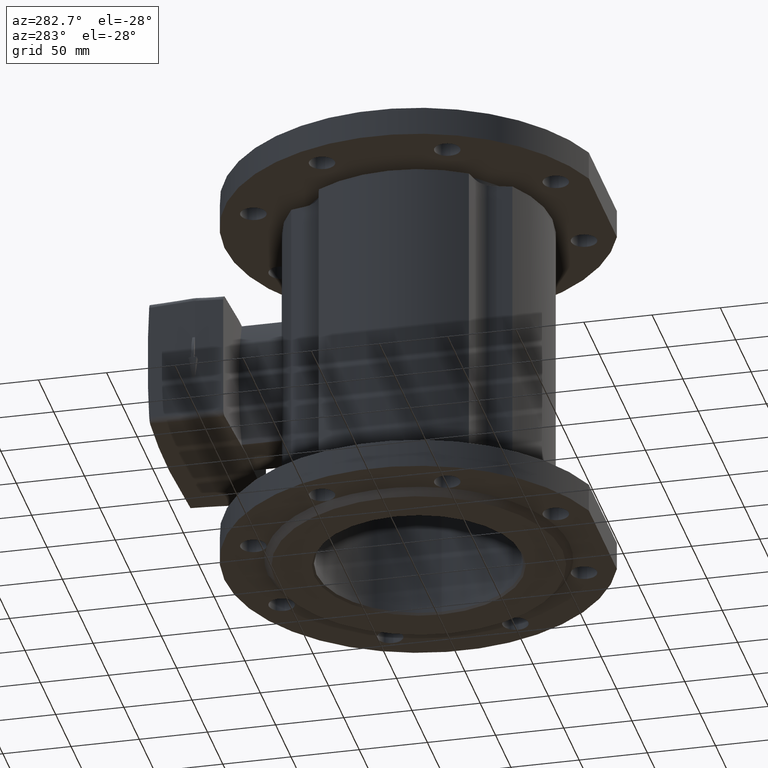
[diagram: clean part render]
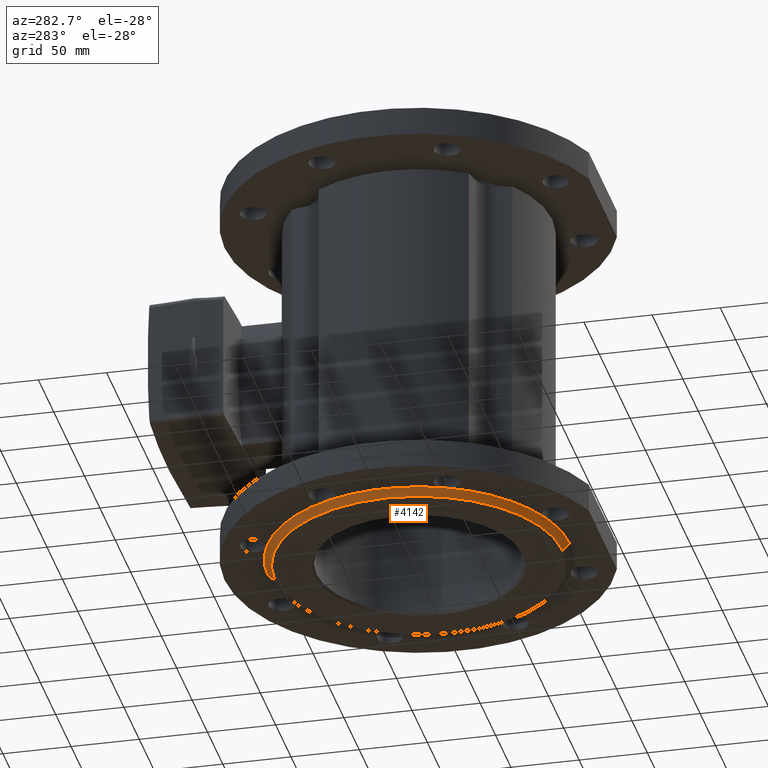
[diagram: same view with one face highlighted and labeled with its STEP entity id]
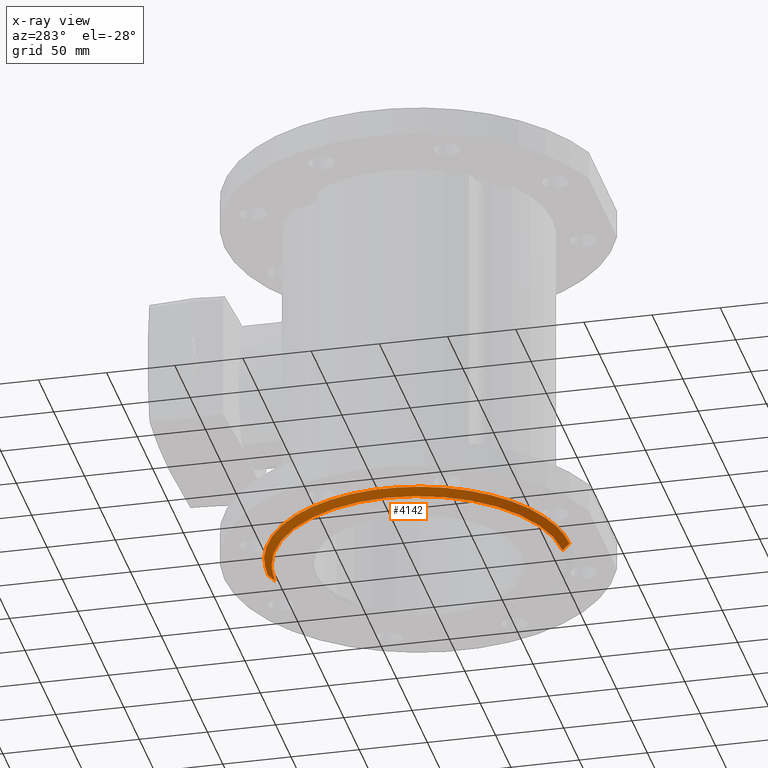
[diagram: x-ray of the same camera — body ghosted, the highlighted face saturated]
A machine part, auxiliary view. The second image highlights one B-rep face of the part: STEP entity #4142.
The next image is the same camera in x-ray: the body ghosted, the highlighted face saturated — about 0% of this face is hidden behind the body in this view.
In plain terms, the highlighted conical surface has half-angle 45 deg.
Its self-contained STEP definition (entity closure, byte-faithful):
#99 = CARTESIAN_POINT ( 'NONE',  ( 1.292002373100457391E-14, 105.4999999999999858, -149.9999999999999716 ) ) ;
#124 = EDGE_LOOP ( 'NONE', ( #5488, #508, #5349, #651, #2990, #295, #6467, #2366 ) ) ;
#147 = DIRECTION ( 'NONE',  ( 0.0000000000000000000, 1.000000000000000000, 0.0000000000000000000 ) ) ;
#175 = VECTOR ( 'NONE', #4499, 1000.000000000000114 ) ;
#278 = DIRECTION ( 'NONE',  ( -0.0000000000000000000, -2.925615526614575854E-17, -1.000000000000000000 ) ) ;
#295 = ORIENTED_EDGE ( 'NONE', *, *, #6165, .T. ) ;
#422 = VERTEX_POINT ( 'NONE', #4901 ) ;
#508 = ORIENTED_EDGE ( 'NONE', *, *, #5893, .F. ) ;
#588 = CARTESIAN_POINT ( 'NONE',  ( 0.0000000000000000000, -4.388423289921862364E-15, -149.9999999999999716 ) ) ;
#622 = VERTEX_POINT ( 'NONE', #3974 ) ;
#651 = ORIENTED_EDGE ( 'NONE', *, *, #2694, .T. ) ;
#943 = CARTESIAN_POINT ( 'NONE',  ( 0.0000000000000000000, -4.242142513591133356E-15, -144.9999999999999716 ) ) ;
#979 = CARTESIAN_POINT ( 'NONE',  ( -42.28651927632579088, -102.0886883425040708, -144.9999999999999716 ) ) ;
#1146 = CIRCLE ( 'NONE', #2114, 110.4999999999999858 ) ;
#1311 = DIRECTION ( 'NONE',  ( 0.0000000000000000000, 1.000000000000000000, 0.0000000000000000000 ) ) ;
#1538 = VERTEX_POINT ( 'NONE', #2791 ) ;
#1543 = LINE ( 'NONE', #99, #5188 ) ;
#1772 = AXIS2_PLACEMENT_3D ( 'NONE', #4981, #3884, #1311 ) ;
#1792 = AXIS2_PLACEMENT_3D ( 'NONE', #588, #3191, #147 ) ;
#2002 = AXIS2_PLACEMENT_3D ( 'NONE', #2512, #4536, #2019 ) ;
#2019 = DIRECTION ( 'NONE',  ( 0.0000000000000000000, -1.000000000000000000, 0.0000000000000000000 ) ) ;
#2021 = VERTEX_POINT ( 'NONE', #4795 ) ;
#2082 = DIRECTION ( 'NONE',  ( 8.659560562354932858E-17, 0.7071067811865474617, 0.7071067811865474617 ) ) ;
#2114 = AXIS2_PLACEMENT_3D ( 'NONE', #6207, #4153, #6177 ) ;
#2200 = AXIS2_PLACEMENT_3D ( 'NONE', #943, #4477, #6502 ) ;
#2322 = DIRECTION ( 'NONE',  ( 0.0000000000000000000, 1.000000000000000000, 0.0000000000000000000 ) ) ;
#2366 = ORIENTED_EDGE ( 'NONE', *, *, #2473, .T. ) ;
#2473 = EDGE_CURVE ( 'NONE', #5787, #622, #2831, .T. ) ;
#2512 = CARTESIAN_POINT ( 'NONE',  ( 0.0000000000000000000, -4.388423289921862364E-15, -149.9999999999999716 ) ) ;
#2536 = CARTESIAN_POINT ( 'NONE',  ( -42.28651927634178520, 102.0886883424974343, -144.9999999999999716 ) ) ;
#2573 = EDGE_CURVE ( 'NONE', #5445, #2021, #6020, .T. ) ;
#2694 = EDGE_CURVE ( 'NONE', #422, #5445, #4215, .T. ) ;
#2736 = CIRCLE ( 'NONE', #6130, 110.4999999999999858 ) ;
#2791 = CARTESIAN_POINT ( 'NONE',  ( -102.0886883424981590, 42.28651927634006569, -144.9999999999999716 ) ) ;
#2816 = CARTESIAN_POINT ( 'NONE',  ( 0.0000000000000000000, -4.242142513591133356E-15, -144.9999999999999716 ) ) ;
#2831 = CIRCLE ( 'NONE', #1772, 110.4999999999999858 ) ;
#2939 = LINE ( 'NONE', #4472, #175 ) ;
#2987 = CARTESIAN_POINT ( 'NONE',  ( 0.0000000000000000000, -105.4999999999999858, -149.9999999999999716 ) ) ;
#2990 = ORIENTED_EDGE ( 'NONE', *, *, #2573, .T. ) ;
#3057 = CARTESIAN_POINT ( 'NONE',  ( 1.322618543079141336E-14, 105.4999999999999858, -149.9999999999999716 ) ) ;
#3191 = DIRECTION ( 'NONE',  ( -0.0000000000000000000, -2.925615526614575854E-17, -1.000000000000000000 ) ) ;
#3273 = CIRCLE ( 'NONE', #1792, 105.4999999999999858 ) ;
#3884 = DIRECTION ( 'NONE',  ( -0.0000000000000000000, -2.925615526614575854E-17, -1.000000000000000000 ) ) ;
#3974 = CARTESIAN_POINT ( 'NONE',  ( 1.353234713057825123E-14, 110.4999999999999858, -144.9999999999999716 ) ) ;
#4101 = EDGE_CURVE ( 'NONE', #6015, #422, #2939, .T. ) ;
#4122 = CONICAL_SURFACE ( 'NONE', #2002, 105.4999999999999858, 0.7853981633974482790 ) ;
#4142 = ADVANCED_FACE ( 'NONE', ( #6526 ), #4122, .T. ) ;
#4153 = DIRECTION ( 'NONE',  ( -0.0000000000000000000, -2.925615526614575854E-17, -1.000000000000000000 ) ) ;
#4215 = CIRCLE ( 'NONE', #2200, 110.4999999999999858 ) ;
#4472 = CARTESIAN_POINT ( 'NONE',  ( 0.0000000000000000000, -105.4999999999999858, -149.9999999999999716 ) ) ;
#4477 = DIRECTION ( 'NONE',  ( -0.0000000000000000000, -2.925615526614575854E-17, -1.000000000000000000 ) ) ;
#4499 = DIRECTION ( 'NONE',  ( 0.0000000000000000000, -0.7071067811865474617, 0.7071067811865474617 ) ) ;
#4536 = DIRECTION ( 'NONE',  ( 0.0000000000000000000, 2.925615526614575854E-17, 1.000000000000000000 ) ) ;
#4795 = CARTESIAN_POINT ( 'NONE',  ( -102.0886883424932563, -42.28651927635191754, -144.9999999999999716 ) ) ;
#4827 = VERTEX_POINT ( 'NONE', #3057 ) ;
#4846 = AXIS2_PLACEMENT_3D ( 'NONE', #2816, #278, #2322 ) ;
#4901 = CARTESIAN_POINT ( 'NONE',  ( 0.0000000000000000000, -110.4999999999999858, -144.9999999999999716 ) ) ;
#4981 = CARTESIAN_POINT ( 'NONE',  ( 0.0000000000000000000, -4.242142513591133356E-15, -144.9999999999999716 ) ) ;
#5084 = EDGE_CURVE ( 'NONE', #1538, #5787, #2736, .T. ) ;
#5139 = DIRECTION ( 'NONE',  ( 0.0000000000000000000, 1.000000000000000000, 0.0000000000000000000 ) ) ;
#5188 = VECTOR ( 'NONE', #2082, 1000.000000000000114 ) ;
#5349 = ORIENTED_EDGE ( 'NONE', *, *, #4101, .T. ) ;
#5445 = VERTEX_POINT ( 'NONE', #979 ) ;
#5488 = ORIENTED_EDGE ( 'NONE', *, *, #6490, .F. ) ;
#5787 = VERTEX_POINT ( 'NONE', #2536 ) ;
#5893 = EDGE_CURVE ( 'NONE', #6015, #4827, #3273, .T. ) ;
#6008 = DIRECTION ( 'NONE',  ( -0.0000000000000000000, -2.925615526614575854E-17, -1.000000000000000000 ) ) ;
#6015 = VERTEX_POINT ( 'NONE', #2987 ) ;
#6020 = CIRCLE ( 'NONE', #4846, 110.4999999999999858 ) ;
#6106 = CARTESIAN_POINT ( 'NONE',  ( 0.0000000000000000000, -4.242142513591133356E-15, -144.9999999999999716 ) ) ;
#6130 = AXIS2_PLACEMENT_3D ( 'NONE', #6106, #6008, #5139 ) ;
#6165 = EDGE_CURVE ( 'NONE', #2021, #1538, #1146, .T. ) ;
#6177 = DIRECTION ( 'NONE',  ( 0.0000000000000000000, 1.000000000000000000, 0.0000000000000000000 ) ) ;
#6207 = CARTESIAN_POINT ( 'NONE',  ( 0.0000000000000000000, -4.242142513591133356E-15, -144.9999999999999716 ) ) ;
#6467 = ORIENTED_EDGE ( 'NONE', *, *, #5084, .T. ) ;
#6490 = EDGE_CURVE ( 'NONE', #4827, #622, #1543, .T. ) ;
#6502 = DIRECTION ( 'NONE',  ( 0.0000000000000000000, 1.000000000000000000, 0.0000000000000000000 ) ) ;
#6526 = FACE_OUTER_BOUND ( 'NONE', #124, .T. ) ;